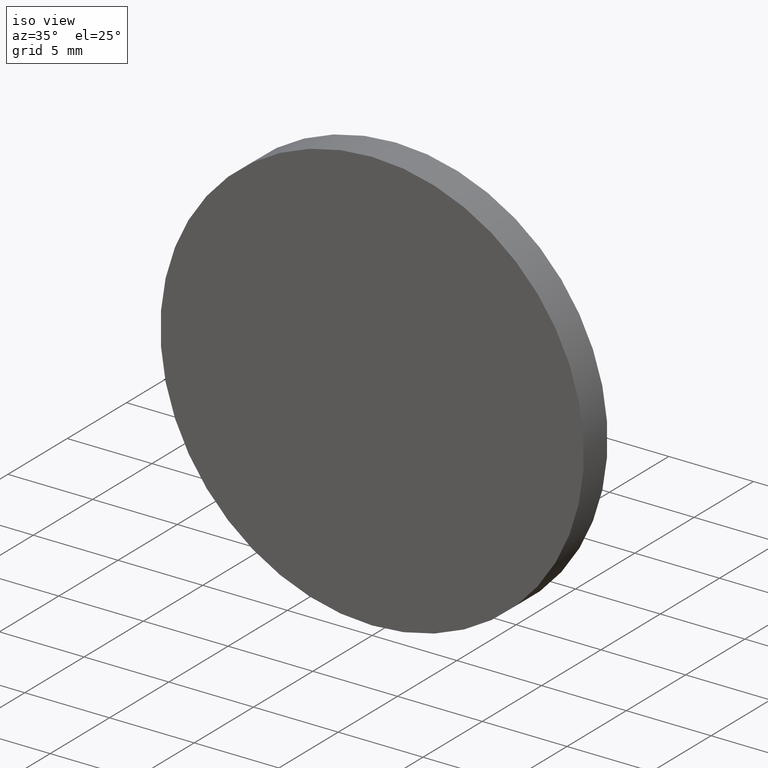
[diagram: clean part render]
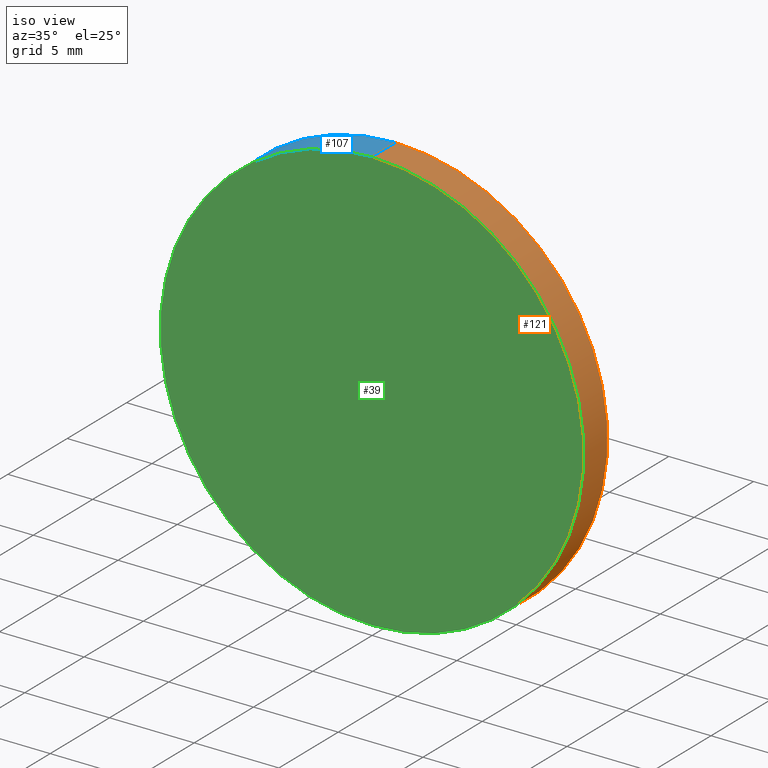
[diagram: same view with three faces highlighted in distinct colors, each labeled with its STEP entity id]
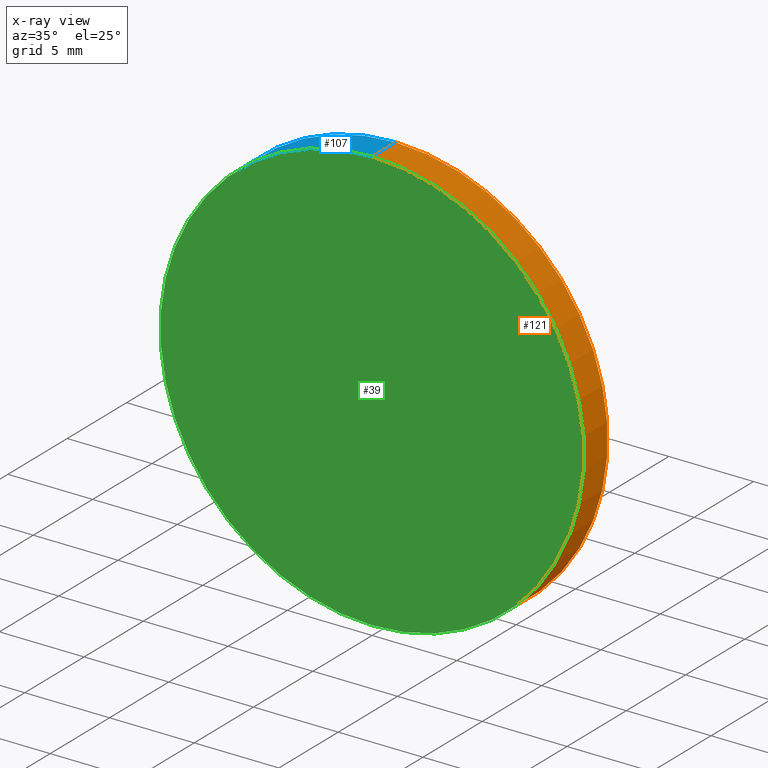
[diagram: x-ray of the same camera — body ghosted, the three highlighted faces saturated]
A machine part, iso view with three faces highlighted in distinct colors.
The next image is the same camera in x-ray (body ghosted, the three faces saturated) — at least one of them is partly hidden behind the body in this view.
Their STEP definitions:

[orange] entity #121 — the highlighted cylindrical surface (partial cylindrical patch) has radius 12.5 mm, axis along (-0, -1, -0).
#3 = VERTEX_POINT ( 'NONE', #73 ) ;
#6 = CARTESIAN_POINT ( 'NONE',  ( 0.0000000000000000000, 2.000000000000000000, 0.0000000000000000000 ) ) ;
#7 = EDGE_CURVE ( 'NONE', #78, #74, #125, .T. ) ;
#12 = ORIENTED_EDGE ( 'NONE', *, *, #7, .F. ) ;
#16 = ORIENTED_EDGE ( 'NONE', *, *, #30, .F. ) ;
#18 = EDGE_CURVE ( 'NONE', #3, #76, #134, .T. ) ;
#23 = DIRECTION ( 'NONE',  ( 0.0000000000000000000, 0.0000000000000000000, -1.000000000000000000 ) ) ;
#24 = EDGE_CURVE ( 'NONE', #76, #74, #67, .T. ) ;
#27 = ORIENTED_EDGE ( 'NONE', *, *, #18, .T. ) ;
#30 = EDGE_CURVE ( 'NONE', #3, #78, #31, .T. ) ;
#31 = CIRCLE ( 'NONE', #48, 12.50000000000000000 ) ;
#34 = CARTESIAN_POINT ( 'NONE',  ( 0.0000000000000000000, 0.0000000000000000000, -12.50000000000000000 ) ) ;
#35 = DIRECTION ( 'NONE',  ( -0.0000000000000000000, -1.000000000000000000, -0.0000000000000000000 ) ) ;
#37 = VECTOR ( 'NONE', #63, 1000.000000000000000 ) ;
#40 = AXIS2_PLACEMENT_3D ( 'NONE', #119, #80, #95 ) ;
#48 = AXIS2_PLACEMENT_3D ( 'NONE', #6, #72, #137 ) ;
#63 = DIRECTION ( 'NONE',  ( -0.0000000000000000000, -1.000000000000000000, -0.0000000000000000000 ) ) ;
#67 = CIRCLE ( 'NONE', #40, 12.50000000000000000 ) ;
#68 = EDGE_LOOP ( 'NONE', ( #16, #27, #130, #12 ) ) ;
#72 = DIRECTION ( 'NONE',  ( 0.0000000000000000000, 1.000000000000000000, 0.0000000000000000000 ) ) ;
#73 = CARTESIAN_POINT ( 'NONE',  ( 1.530808498934191500E-015, 2.000000000000000000, 12.50000000000000000 ) ) ;
#74 = VERTEX_POINT ( 'NONE', #34 ) ;
#76 = VERTEX_POINT ( 'NONE', #103 ) ;
#77 = CARTESIAN_POINT ( 'NONE',  ( 1.530808498934191500E-015, 2.000000000000000000, 12.50000000000000000 ) ) ;
#78 = VERTEX_POINT ( 'NONE', #114 ) ;
#80 = DIRECTION ( 'NONE',  ( 0.0000000000000000000, 1.000000000000000000, 0.0000000000000000000 ) ) ;
#82 = CARTESIAN_POINT ( 'NONE',  ( 0.0000000000000000000, 2.000000000000000000, -12.50000000000000000 ) ) ;
#95 = DIRECTION ( 'NONE',  ( 0.0000000000000000000, 0.0000000000000000000, 1.000000000000000000 ) ) ;
#96 = VECTOR ( 'NONE', #106, 1000.000000000000000 ) ;
#103 = CARTESIAN_POINT ( 'NONE',  ( 1.530808498934191500E-015, 0.0000000000000000000, 12.50000000000000000 ) ) ;
#104 = CARTESIAN_POINT ( 'NONE',  ( 0.0000000000000000000, 2.000000000000000000, 0.0000000000000000000 ) ) ;
#106 = DIRECTION ( 'NONE',  ( -0.0000000000000000000, -1.000000000000000000, -0.0000000000000000000 ) ) ;
#108 = AXIS2_PLACEMENT_3D ( 'NONE', #104, #35, #23 ) ;
#114 = CARTESIAN_POINT ( 'NONE',  ( 0.0000000000000000000, 2.000000000000000000, -12.50000000000000000 ) ) ;
#119 = CARTESIAN_POINT ( 'NONE',  ( 0.0000000000000000000, 0.0000000000000000000, 0.0000000000000000000 ) ) ;
#121 = ADVANCED_FACE ( 'NONE', ( #126 ), #139, .T. ) ;
#125 = LINE ( 'NONE', #82, #96 ) ;
#126 = FACE_OUTER_BOUND ( 'NONE', #68, .T. ) ;
#130 = ORIENTED_EDGE ( 'NONE', *, *, #24, .T. ) ;
#134 = LINE ( 'NONE', #77, #37 ) ;
#137 = DIRECTION ( 'NONE',  ( 0.0000000000000000000, 0.0000000000000000000, 1.000000000000000000 ) ) ;
#139 = CYLINDRICAL_SURFACE ( 'NONE', #108, 12.50000000000000000 ) ;

[blue] entity #107 — the highlighted cylindrical surface (partial cylindrical patch) has radius 12.5 mm, axis along (-0, -1, -0).
#1 = FACE_OUTER_BOUND ( 'NONE', #140, .T. ) ;
#2 = CYLINDRICAL_SURFACE ( 'NONE', #86, 12.50000000000000000 ) ;
#3 = VERTEX_POINT ( 'NONE', #73 ) ;
#4 = DIRECTION ( 'NONE',  ( 0.0000000000000000000, 0.0000000000000000000, 1.000000000000000000 ) ) ;
#7 = EDGE_CURVE ( 'NONE', #78, #74, #125, .T. ) ;
#14 = DIRECTION ( 'NONE',  ( 0.0000000000000000000, 1.000000000000000000, 0.0000000000000000000 ) ) ;
#18 = EDGE_CURVE ( 'NONE', #3, #76, #134, .T. ) ;
#19 = ORIENTED_EDGE ( 'NONE', *, *, #18, .F. ) ;
#20 = ORIENTED_EDGE ( 'NONE', *, *, #50, .F. ) ;
#29 = CIRCLE ( 'NONE', #71, 12.50000000000000000 ) ;
#34 = CARTESIAN_POINT ( 'NONE',  ( 0.0000000000000000000, 0.0000000000000000000, -12.50000000000000000 ) ) ;
#37 = VECTOR ( 'NONE', #63, 1000.000000000000000 ) ;
#38 = AXIS2_PLACEMENT_3D ( 'NONE', #60, #127, #47 ) ;
#44 = EDGE_CURVE ( 'NONE', #74, #76, #29, .T. ) ;
#47 = DIRECTION ( 'NONE',  ( 0.0000000000000000000, 0.0000000000000000000, 1.000000000000000000 ) ) ;
#50 = EDGE_CURVE ( 'NONE', #78, #3, #116, .T. ) ;
#52 = ORIENTED_EDGE ( 'NONE', *, *, #7, .T. ) ;
#55 = ORIENTED_EDGE ( 'NONE', *, *, #44, .T. ) ;
#59 = DIRECTION ( 'NONE',  ( -0.0000000000000000000, -1.000000000000000000, -0.0000000000000000000 ) ) ;
#60 = CARTESIAN_POINT ( 'NONE',  ( 0.0000000000000000000, 2.000000000000000000, 0.0000000000000000000 ) ) ;
#63 = DIRECTION ( 'NONE',  ( -0.0000000000000000000, -1.000000000000000000, -0.0000000000000000000 ) ) ;
#70 = DIRECTION ( 'NONE',  ( 0.0000000000000000000, 0.0000000000000000000, -1.000000000000000000 ) ) ;
#71 = AXIS2_PLACEMENT_3D ( 'NONE', #94, #14, #4 ) ;
#73 = CARTESIAN_POINT ( 'NONE',  ( 1.530808498934191500E-015, 2.000000000000000000, 12.50000000000000000 ) ) ;
#74 = VERTEX_POINT ( 'NONE', #34 ) ;
#76 = VERTEX_POINT ( 'NONE', #103 ) ;
#77 = CARTESIAN_POINT ( 'NONE',  ( 1.530808498934191500E-015, 2.000000000000000000, 12.50000000000000000 ) ) ;
#78 = VERTEX_POINT ( 'NONE', #114 ) ;
#82 = CARTESIAN_POINT ( 'NONE',  ( 0.0000000000000000000, 2.000000000000000000, -12.50000000000000000 ) ) ;
#86 = AXIS2_PLACEMENT_3D ( 'NONE', #117, #59, #70 ) ;
#94 = CARTESIAN_POINT ( 'NONE',  ( 0.0000000000000000000, 0.0000000000000000000, 0.0000000000000000000 ) ) ;
#96 = VECTOR ( 'NONE', #106, 1000.000000000000000 ) ;
#103 = CARTESIAN_POINT ( 'NONE',  ( 1.530808498934191500E-015, 0.0000000000000000000, 12.50000000000000000 ) ) ;
#106 = DIRECTION ( 'NONE',  ( -0.0000000000000000000, -1.000000000000000000, -0.0000000000000000000 ) ) ;
#107 = ADVANCED_FACE ( 'NONE', ( #1 ), #2, .T. ) ;
#114 = CARTESIAN_POINT ( 'NONE',  ( 0.0000000000000000000, 2.000000000000000000, -12.50000000000000000 ) ) ;
#116 = CIRCLE ( 'NONE', #38, 12.50000000000000000 ) ;
#117 = CARTESIAN_POINT ( 'NONE',  ( 0.0000000000000000000, 2.000000000000000000, 0.0000000000000000000 ) ) ;
#125 = LINE ( 'NONE', #82, #96 ) ;
#127 = DIRECTION ( 'NONE',  ( 0.0000000000000000000, 1.000000000000000000, 0.0000000000000000000 ) ) ;
#134 = LINE ( 'NONE', #77, #37 ) ;
#140 = EDGE_LOOP ( 'NONE', ( #19, #20, #52, #55 ) ) ;

[green] entity #39 — the highlighted planar face has unit normal (0, 1, 0).
#4 = DIRECTION ( 'NONE',  ( 0.0000000000000000000, 0.0000000000000000000, 1.000000000000000000 ) ) ;
#11 = FACE_OUTER_BOUND ( 'NONE', #45, .T. ) ;
#14 = DIRECTION ( 'NONE',  ( 0.0000000000000000000, 1.000000000000000000, 0.0000000000000000000 ) ) ;
#24 = EDGE_CURVE ( 'NONE', #76, #74, #67, .T. ) ;
#29 = CIRCLE ( 'NONE', #71, 12.50000000000000000 ) ;
#34 = CARTESIAN_POINT ( 'NONE',  ( 0.0000000000000000000, 0.0000000000000000000, -12.50000000000000000 ) ) ;
#39 = ADVANCED_FACE ( 'NONE', ( #11 ), #43, .F. ) ;
#40 = AXIS2_PLACEMENT_3D ( 'NONE', #119, #80, #95 ) ;
#43 = PLANE ( 'NONE',  #90 ) ;
#44 = EDGE_CURVE ( 'NONE', #74, #76, #29, .T. ) ;
#45 = EDGE_LOOP ( 'NONE', ( #110, #46 ) ) ;
#46 = ORIENTED_EDGE ( 'NONE', *, *, #24, .F. ) ;
#62 = DIRECTION ( 'NONE',  ( 0.0000000000000000000, 1.000000000000000000, 0.0000000000000000000 ) ) ;
#67 = CIRCLE ( 'NONE', #40, 12.50000000000000000 ) ;
#71 = AXIS2_PLACEMENT_3D ( 'NONE', #94, #14, #4 ) ;
#74 = VERTEX_POINT ( 'NONE', #34 ) ;
#76 = VERTEX_POINT ( 'NONE', #103 ) ;
#80 = DIRECTION ( 'NONE',  ( 0.0000000000000000000, 1.000000000000000000, 0.0000000000000000000 ) ) ;
#81 = CARTESIAN_POINT ( 'NONE',  ( 0.0000000000000000000, 0.0000000000000000000, 0.0000000000000000000 ) ) ;
#90 = AXIS2_PLACEMENT_3D ( 'NONE', #81, #62, #128 ) ;
#94 = CARTESIAN_POINT ( 'NONE',  ( 0.0000000000000000000, 0.0000000000000000000, 0.0000000000000000000 ) ) ;
#95 = DIRECTION ( 'NONE',  ( 0.0000000000000000000, 0.0000000000000000000, 1.000000000000000000 ) ) ;
#103 = CARTESIAN_POINT ( 'NONE',  ( 1.530808498934191500E-015, 0.0000000000000000000, 12.50000000000000000 ) ) ;
#110 = ORIENTED_EDGE ( 'NONE', *, *, #44, .F. ) ;
#119 = CARTESIAN_POINT ( 'NONE',  ( 0.0000000000000000000, 0.0000000000000000000, 0.0000000000000000000 ) ) ;
#128 = DIRECTION ( 'NONE',  ( 0.0000000000000000000, -0.0000000000000000000, 1.000000000000000000 ) ) ;